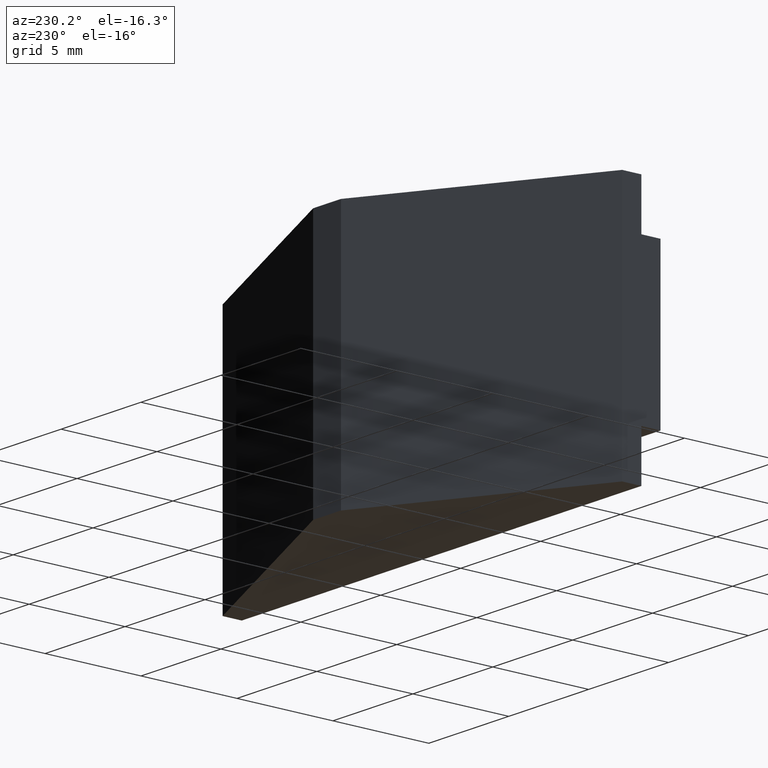
[diagram: clean part render]
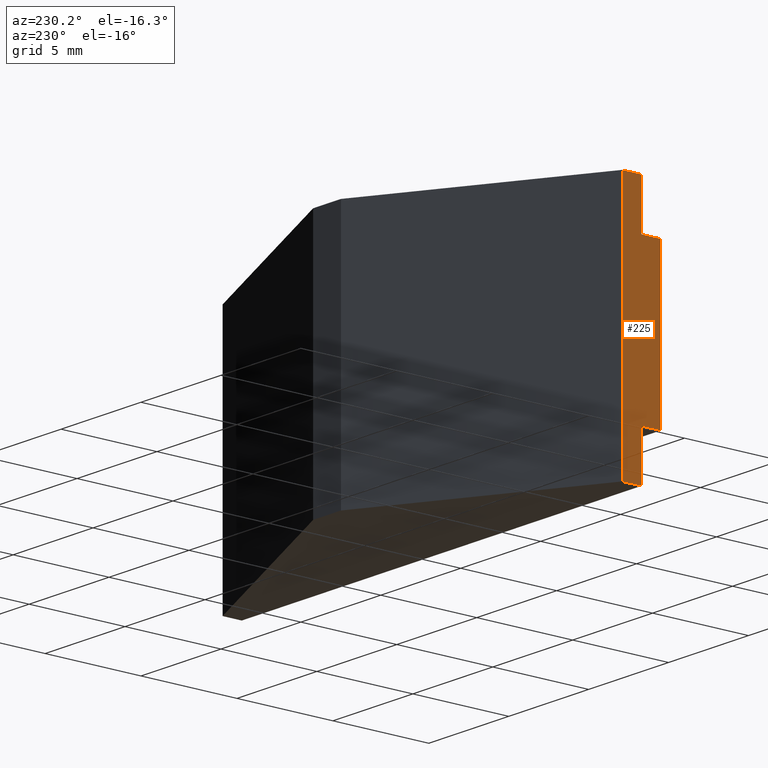
[diagram: same view with one face highlighted and labeled with its STEP entity id]
A machine part, auxiliary view. The second image highlights one B-rep face of the part: STEP entity #225.
In plain terms, the highlighted planar face has unit normal (-1, 0, 0).
Its self-contained STEP definition (entity closure, byte-faithful):
#19=FACE_OUTER_BOUND('',#31,.T.);
#31=EDGE_LOOP('',(#165,#166,#167,#168,#169,#170,#171,#172));
#41=LINE('',#332,#71);
#45=LINE('',#339,#75);
#46=LINE('',#343,#76);
#50=LINE('',#351,#80);
#53=LINE('',#356,#83);
#54=LINE('',#358,#84);
#55=LINE('',#360,#85);
#56=LINE('',#361,#86);
#71=VECTOR('',#274,10.);
#75=VECTOR('',#280,10.);
#76=VECTOR('',#283,10.);
#80=VECTOR('',#289,10.);
#83=VECTOR('',#294,10.);
#84=VECTOR('',#295,10.);
#85=VECTOR('',#296,10.);
#86=VECTOR('',#297,10.);
#101=VERTEX_POINT('',#329);
#102=VERTEX_POINT('',#331);
#104=VERTEX_POINT('',#337);
#105=VERTEX_POINT('',#341);
#106=VERTEX_POINT('',#342);
#109=VERTEX_POINT('',#350);
#111=VERTEX_POINT('',#357);
#112=VERTEX_POINT('',#359);
#121=EDGE_CURVE('',#102,#101,#41,.T.);
#125=EDGE_CURVE('',#101,#104,#45,.T.);
#126=EDGE_CURVE('',#105,#106,#46,.T.);
#130=EDGE_CURVE('',#106,#109,#50,.T.);
#133=EDGE_CURVE('',#105,#104,#53,.T.);
#134=EDGE_CURVE('',#111,#109,#54,.T.);
#135=EDGE_CURVE('',#112,#111,#55,.T.);
#136=EDGE_CURVE('',#102,#112,#56,.T.);
#165=ORIENTED_EDGE('',*,*,#121,.T.);
#166=ORIENTED_EDGE('',*,*,#125,.T.);
#167=ORIENTED_EDGE('',*,*,#133,.F.);
#168=ORIENTED_EDGE('',*,*,#126,.T.);
#169=ORIENTED_EDGE('',*,*,#130,.T.);
#170=ORIENTED_EDGE('',*,*,#134,.F.);
#171=ORIENTED_EDGE('',*,*,#135,.F.);
#172=ORIENTED_EDGE('',*,*,#136,.F.);
#213=PLANE('',#260);
#225=ADVANCED_FACE('',(#19),#213,.T.);
#260=AXIS2_PLACEMENT_3D('',#355,#292,#293);
#274=DIRECTION('',(0.,-1.66533453693773E-16,1.));
#280=DIRECTION('',(0.,-1.,0.));
#283=DIRECTION('',(0.,1.,0.));
#289=DIRECTION('',(0.,1.66533453693773E-16,1.));
#292=DIRECTION('center_axis',(-1.,0.,0.));
#293=DIRECTION('ref_axis',(0.,-1.,0.));
#294=DIRECTION('',(0.,0.,-1.));
#295=DIRECTION('',(0.,-1.,0.));
#296=DIRECTION('',(0.,0.,1.));
#297=DIRECTION('',(0.,1.,0.));
#329=CARTESIAN_POINT('',(-12.5,1.,-4.));
#331=CARTESIAN_POINT('',(-12.5,1.,-6.5));
#332=CARTESIAN_POINT('',(-12.5,1.,-2.));
#337=CARTESIAN_POINT('',(-12.5,1.22464679914736E-16,-4.));
#339=CARTESIAN_POINT('',(-12.5,1.,-4.));
#341=CARTESIAN_POINT('',(-12.5,1.22464679914736E-16,4.));
#342=CARTESIAN_POINT('',(-12.5,1.,4.));
#343=CARTESIAN_POINT('',(-12.5,1.5,4.));
#350=CARTESIAN_POINT('',(-12.5,1.,6.5));
#351=CARTESIAN_POINT('',(-12.5,1.,3.25));
#355=CARTESIAN_POINT('Origin',(-12.5,2.,0.));
#356=CARTESIAN_POINT('',(-12.5,1.11022302462516E-15,0.));
#357=CARTESIAN_POINT('',(-12.5,2.,6.5));
#358=CARTESIAN_POINT('',(-12.5,2.,6.5));
#359=CARTESIAN_POINT('',(-12.5,2.,-6.5));
#360=CARTESIAN_POINT('',(-12.5,2.,0.));
#361=CARTESIAN_POINT('',(-12.5,2.,-6.5));